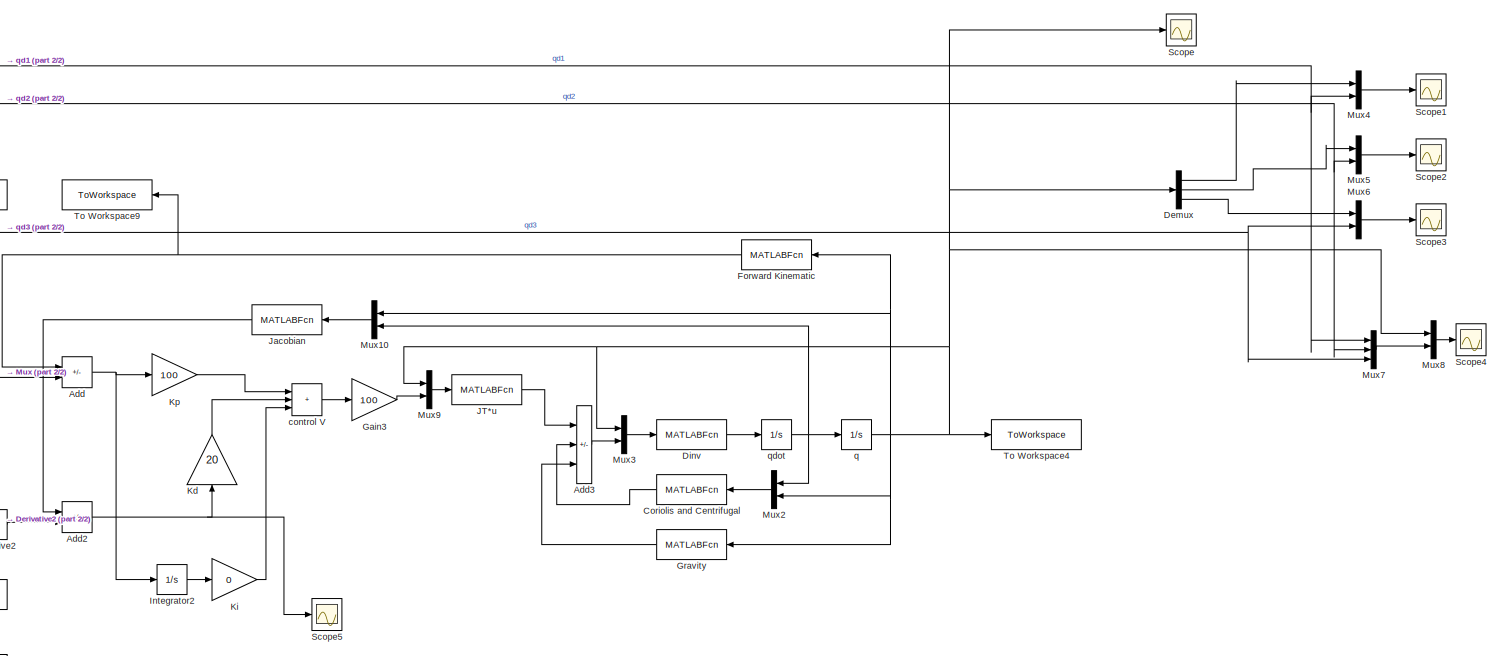
[diagram: root canvas - part 1/2, most of the canvas]
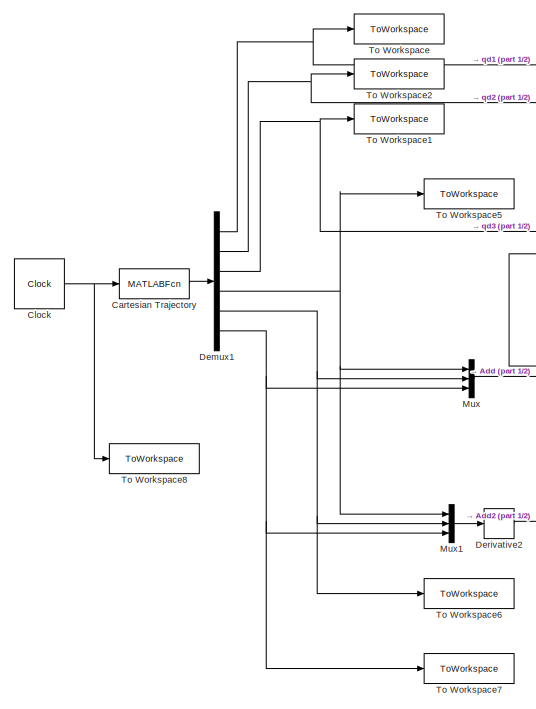
[diagram: root canvas - part 2/2, left side, full height]
MODEL slx_afa2d7e7eae3
KIND model
CONFIG AbsTol = auto
CONFIG EnableMultiTasking = off
CONFIG FixedStep = auto
CONFIG MaxStep = auto
CONFIG MinStep = auto
CONFIG RelTol = 1e-3
CONFIG SampleTimeConstraint = Unconstrained
CONFIG SolverName = VariableStepAuto
CONFIG StartTime = 0.0
CONFIG StopTime = 2*pi
BLOCK [Sum] Add
  IconShape = rectangular
  Inputs = -+
BLOCK [Sum] Add2
  IconShape = rectangular
  Inputs = -+
BLOCK [Sum] Add3
  IconShape = rectangular
  Inputs = +--
BLOCK [MATLABFcn] Cartesian Trajectory
  MATLABFcn = Cartesian_trajectory(u)
  Output1D = off
  OutputDimensions = 6
BLOCK [Clock] Clock
  Decimation = 1
BLOCK [MATLABFcn] Coriolis and Centrifugal
  MATLABFcn = Coriolis3(u)
  Output1D = off
  OutputDimensions = 3
BLOCK [Demux] Demux
  Outputs = 3
BLOCK [Demux] Demux1
  Outputs = 6
BLOCK [Derivative] Derivative2
BLOCK [MATLABFcn] Dinv
  MATLABFcn = Dinv3(u)
  Output1D = off
  OutputDimensions = 3
BLOCK [MATLABFcn] Forward Kinematic
  MATLABFcn = Forward_kin3(u)
  Output1D = off
  OutputDimensions = 3
BLOCK [Gain] Gain3
  Gain = 100
BLOCK [MATLABFcn] Gravity
  MATLABFcn = Gravity3(u)
  Output1D = off
  OutputDimensions = 3
BLOCK [Integrator] Integrator2
  InitialCondition = [0.408;0.408;0.53];
BLOCK [MATLABFcn] JT*u
  MATLABFcn = JT3(u)
  Output1D = off
  OutputDimensions = 3
BLOCK [MATLABFcn] Jacobian
  MATLABFcn = Jacobian3(u)
  Output1D = off
  OutputDimensions = 3
BLOCK [Gain] Kd
  Gain = 20
  NameLocation = right
BLOCK [Gain] Ki
  Gain = 0
BLOCK [Gain] Kp
  Gain = 100
BLOCK [Mux] Mux
  DisplayOption = bar
  Inputs = 3
BLOCK [Mux] Mux1
  DisplayOption = bar
  Inputs = 3
BLOCK [Mux] Mux10
  DisplayOption = bar
  Inputs = 2
BLOCK [Mux] Mux2
  DisplayOption = bar
  Inputs = 2
BLOCK [Mux] Mux3
  DisplayOption = bar
  Inputs = 2
BLOCK [Mux] Mux4
  DisplayOption = bar
  Inputs = 2
BLOCK [Mux] Mux5
  DisplayOption = bar
  Inputs = 2
BLOCK [Mux] Mux6
  DisplayOption = bar
  Inputs = 2
BLOCK [Mux] Mux7
  DisplayOption = bar
  Inputs = 3
BLOCK [Mux] Mux8
  DisplayOption = bar
  Inputs = 2
BLOCK [Mux] Mux9
  DisplayOption = bar
  Inputs = 2
BLOCK [Scope] Scope
  Floating = off
  NumInputPorts = 1
  ScopeSpecificationString = Simulink.scopes.TimeScopeBlockCfg('CurrentConfiguration', extmgr.ConfigurationSet(extmgr.Configuration('Core','General UI',true,'FigureColor',[1 1 1]),extmgr.Configuration('Core','Source UI',true),extmgr.Configuration('Sources','WiredSimulink',true),extmgr.Configuration('Visuals','Time Domain',true,'SerializedDisplays',{struct('MinYLimReal','-2.59698','MaxYLimReal','1.54514','YLabelReal','','MinYL...<+1495ch>
BLOCK [Scope] Scope1
  Floating = off
  NumInputPorts = 1
  ScopeSpecificationString = Simulink.scopes.TimeScopeBlockCfg('CurrentConfiguration', extmgr.ConfigurationSet(extmgr.Configuration('Core','General UI',true,'FigureColor',[1 1 1]),extmgr.Configuration('Core','Source UI',true),extmgr.Configuration('Sources','WiredSimulink',true,'DataLoggingVariableName','ScopeData1'),extmgr.Configuration('Visuals','Time Domain',true,'SerializedDisplays',{struct('MinYLimReal','0.38728','MaxYLim...<+1502ch>
BLOCK [Scope] Scope2
  Floating = off
  NumInputPorts = 1
  ScopeSpecificationString = Simulink.scopes.TimeScopeBlockCfg('CurrentConfiguration', extmgr.ConfigurationSet(extmgr.Configuration('Core','General UI',true,'FigureColor',[1 1 1]),extmgr.Configuration('Core','Source UI',true),extmgr.Configuration('Sources','WiredSimulink',true,'DataLoggingVariableName','ScopeData2'),extmgr.Configuration('Visuals','Time Domain',true,'SerializedDisplays',{struct('MinYLimReal','0.47399','MaxYLim...<+1502ch>
BLOCK [Scope] Scope3
  Floating = off
  NumInputPorts = 1
  ScopeSpecificationString = Simulink.scopes.TimeScopeBlockCfg('CurrentConfiguration', extmgr.ConfigurationSet(extmgr.Configuration('Core','General UI',true,'FigureColor',[1 1 1]),extmgr.Configuration('Core','Source UI',true),extmgr.Configuration('Sources','WiredSimulink',true,'DataLoggingVariableName','ScopeData3'),extmgr.Configuration('Visuals','Time Domain',true,'SerializedDisplays',{struct('MinYLimReal','-2.34033','MaxYLi...<+1506ch>
BLOCK [Scope] Scope4
  Floating = off
  NumInputPorts = 1
  ScopeSpecificationString = Simulink.scopes.TimeScopeBlockCfg('CurrentConfiguration', extmgr.ConfigurationSet(extmgr.Configuration('Core','General UI',true,'FigureColor',[1 1 1]),extmgr.Configuration('Core','Source UI',true),extmgr.Configuration('Sources','WiredSimulink',true,'DataLoggingVariableName','ScopeData1'),extmgr.Configuration('Visuals','Time Domain',true,'SerializedDisplays',{struct('MinYLimReal','-2.5982','MaxYLim...<+1908ch>
BLOCK [Scope] Scope5
  Floating = off
  NumInputPorts = 1
  ScopeSpecificationString = Simulink.scopes.TimeScopeBlockCfg('CurrentConfiguration', extmgr.ConfigurationSet(extmgr.Configuration('Core','General UI',true,'FigureColor',[1 1 1]),extmgr.Configuration('Core','Source UI',true),extmgr.Configuration('Sources','WiredSimulink',true,'DataLoggingVariableName','ScopeData1'),extmgr.Configuration('Visuals','Time Domain',true,'SerializedDisplays',{struct('MinYLimReal','-0.05704','MaxYLi...<+1903ch>
BLOCK [ToWorkspace] To Workspace
  FixptAsFi = on
  MaxDataPoints = inf
  SampleTime = 0.001
  SaveFormat = Timeseries
  VariableName = qd1
BLOCK [ToWorkspace] To Workspace1
  FixptAsFi = on
  MaxDataPoints = inf
  SampleTime = 0.001
  SaveFormat = Timeseries
  VariableName = qd3
BLOCK [ToWorkspace] To Workspace2
  FixptAsFi = on
  MaxDataPoints = inf
  SampleTime = 0.001
  SaveFormat = Timeseries
  VariableName = qd2
BLOCK [ToWorkspace] To Workspace4
  FixptAsFi = on
  MaxDataPoints = inf
  SampleTime = 0.001
  SaveFormat = Timeseries
  VariableName = q
BLOCK [ToWorkspace] To Workspace5
  FixptAsFi = on
  MaxDataPoints = inf
  SampleTime = 0.001
  VariableName = xd
BLOCK [ToWorkspace] To Workspace6
  FixptAsFi = on
  MaxDataPoints = inf
  SampleTime = 0.001
  VariableName = yd
BLOCK [ToWorkspace] To Workspace7
  FixptAsFi = on
  MaxDataPoints = inf
  SampleTime = 0.001
  VariableName = zd
BLOCK [ToWorkspace] To Workspace8
  FixptAsFi = on
  MaxDataPoints = inf
  SampleTime = 0.001
  SaveFormat = Timeseries
  VariableName = t
BLOCK [ToWorkspace] To Workspace9
  FixptAsFi = on
  MaxDataPoints = inf
  SampleTime = 0.001
  VariableName = x
BLOCK [Sum] control V
  IconShape = rectangular
  Inputs = +++
BLOCK [Integrator] q
  InitialCondition = [0.9587;0.7246;-1.1694]
BLOCK [Integrator] qdot
  InitialCondition = [0;0;0];
NET Add2:1 -> Kd:1, Scope5:1
LINE Add3:1 -> Mux3:2
NET Add:1 -> Integrator2:1, Kp:1
LINE Cartesian Trajectory:1 -> Demux1:1
NET Clock:1 -> Cartesian Trajectory:1, To Workspace8:1
LINE Coriolis and Centrifugal:1 -> Add3:2
NET Demux1:1 -> Mux4:2, Mux7:1, To Workspace:1
NET Demux1:2 -> Mux5:2, Mux7:2, To Workspace2:1
NET Demux1:3 -> Mux6:2, Mux7:3, To Workspace1:1
NET Demux1:4 -> Mux1:1, Mux:1, To Workspace5:1
NET Demux1:5 -> Mux1:2, Mux:2, To Workspace6:1
NET Demux1:6 -> Mux1:3, Mux:3, To Workspace7:1
LINE Demux:1 -> Mux4:1
LINE Demux:2 -> Mux5:1
LINE Demux:3 -> Mux6:1
LINE Derivative2:1 -> Add2:2
LINE Dinv:1 -> qdot:1
NET Forward Kinematic:1 -> Add:1, To Workspace9:1
LINE Gain3:1 -> Mux9:2
LINE Gravity:1 -> Add3:3
LINE Integrator2:1 -> Ki:1
LINE JT*u:1 -> Add3:1
LINE Jacobian:1 -> Add2:1
LINE Kd:1 -> control V:2
LINE Ki:1 -> control V:3
LINE Kp:1 -> control V:1
LINE Mux10:1 -> Jacobian:1
LINE Mux1:1 -> Derivative2:1
LINE Mux2:1 -> Coriolis and Centrifugal:1
LINE Mux3:1 -> Dinv:1
LINE Mux4:1 -> Scope1:1
LINE Mux5:1 -> Scope2:1
LINE Mux6:1 -> Scope3:1
LINE Mux7:1 -> Mux8:2
LINE Mux8:1 -> Scope4:1
LINE Mux9:1 -> JT*u:1
LINE Mux:1 -> Add:2
LINE control V:1 -> Gain3:1
NET q:1 -> Demux:1, Forward Kinematic:1, Gravity:1, Mux10:1, Mux2:2, Mux3:1, Mux8:1, Mux9:1, Scope:1, To Workspace4:1
NET qdot:1 -> Mux10:2, Mux2:1, q:1
note: NET lines group one-source signal fan-out (src -> all destinations, sorted); 1:1 wires keep LINE
